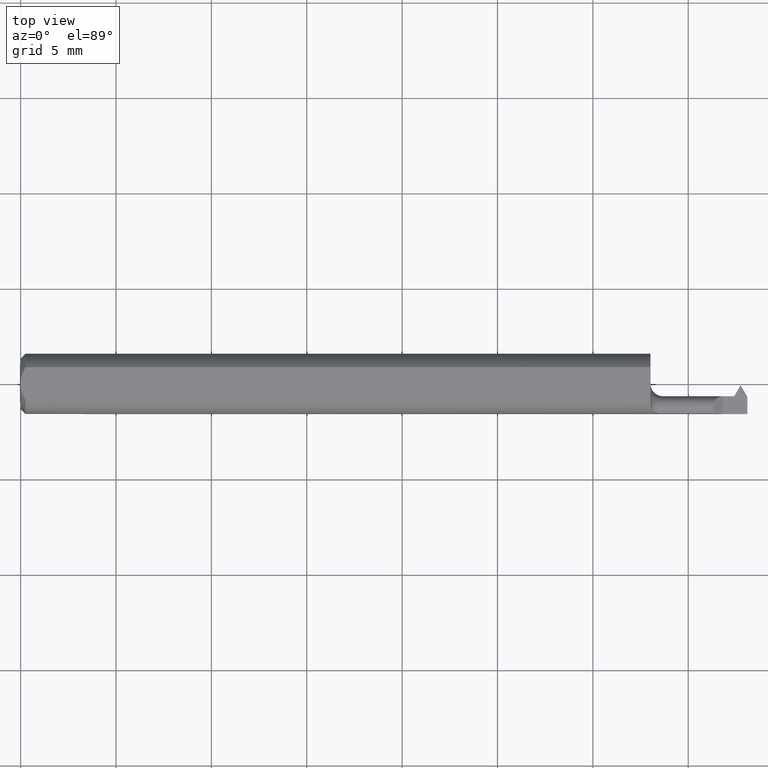
[diagram: clean part render]
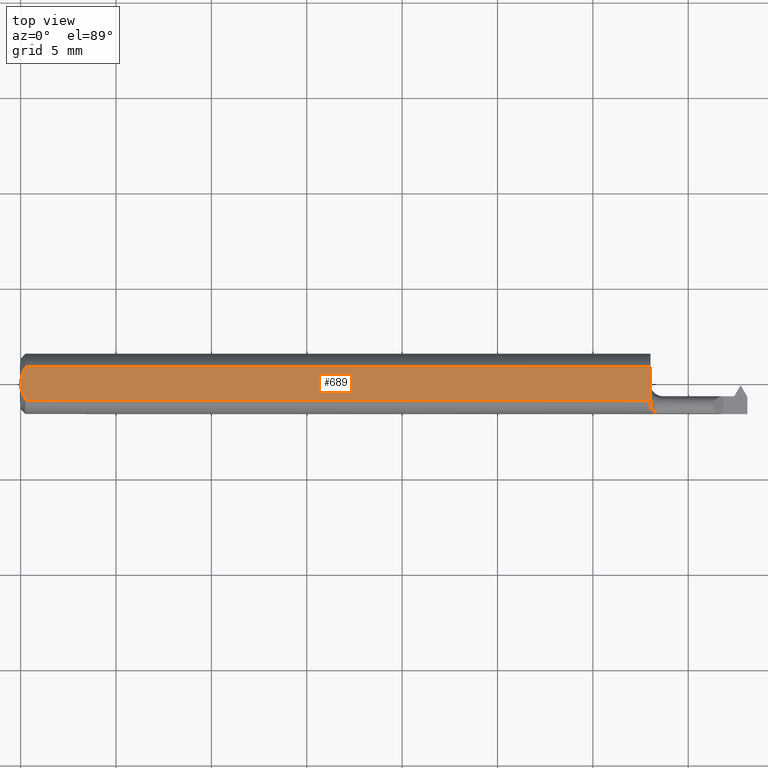
[diagram: same view with one face highlighted and labeled with its STEP entity id]
A machine part, top view. The second image highlights one B-rep face of the part: STEP entity #689.
In plain terms, the highlighted planar face has unit normal (0, 0, 1).
Its self-contained STEP definition (entity closure, byte-faithful):
#4 = CARTESIAN_POINT ( 'NONE',  ( -8.573957617566337510E-16, 0.005954997531773999035, 0.05234999999999997294 ) ) ;
#9 = LINE ( 'NONE', #332, #424 ) ;
#17 = VECTOR ( 'NONE', #316, 39.37007874015748143 ) ;
#42 = DIRECTION ( 'NONE',  ( -1.000000000000000000, -0.000000000000000000, -0.000000000000000000 ) ) ;
#43 = EDGE_CURVE ( 'NONE', #362, #551, #375, .T. ) ;
#47 = CARTESIAN_POINT ( 'NONE',  ( 0.000000000000000000, 0.000000000000000000, 0.05234999999999997294 ) ) ;
#82 = EDGE_CURVE ( 'NONE', #266, #306, #95, .T. ) ;
#95 = LINE ( 'NONE', #594, #542 ) ;
#106 = DIRECTION ( 'NONE',  ( -9.929577671863619690E-17, 1.000000000000000000, 0.000000000000000000 ) ) ;
#129 = ORIENTED_EDGE ( 'NONE', *, *, #442, .F. ) ;
#139 = CARTESIAN_POINT ( 'NONE',  ( 1.300000000000000044, -0.03386738844375225543, 0.05234999999999997294 ) ) ;
#170 = CARTESIAN_POINT ( 'NONE',  ( 0.001063697276021587047, 0.01189177144351697378, 0.05234999999999997988 ) ) ;
#190 = CARTESIAN_POINT ( 'NONE',  ( 0.007163450771350545095, -0.02864528976618618133, 0.05234999999999997294 ) ) ;
#197 = B_SPLINE_CURVE_WITH_KNOTS ( 'NONE', 3,
 ( #47, #4, #170, #394, #223, #501 ),
 .UNSPECIFIED., .F., .F.,
 ( 4, 2, 4 ),
 ( 0.003093386807937201135, 0.003544501666246021275, 0.003995616524554840981 ),
 .UNSPECIFIED. ) ;
#207 = B_SPLINE_CURVE_WITH_KNOTS ( 'NONE', 3,
 ( #688, #190, #360, #588, #476, #693 ),
 .UNSPECIFIED., .F., .F.,
 ( 4, 2, 4 ),
 ( 0.002189598257423869179, 0.002641492532680535157, 0.003093386807937201135 ),
 .UNSPECIFIED. ) ;
#211 = CARTESIAN_POINT ( 'NONE',  ( 0.000000000000000000, -0.03386738844375224849, 0.05234999999999997294 ) ) ;
#212 = ORIENTED_EDGE ( 'NONE', *, *, #597, .F. ) ;
#223 = CARTESIAN_POINT ( 'NONE',  ( 0.007185421074056362600, 0.02868573718286564905, 0.05234999999999997294 ) ) ;
#266 = VERTEX_POINT ( 'NONE', #398 ) ;
#278 = CARTESIAN_POINT ( 'NONE',  ( 0.01000000000000001582, -0.03386738844375224849, 0.05234999999999997294 ) ) ;
#286 = DIRECTION ( 'NONE',  ( 0.000000000000000000, 0.000000000000000000, 1.000000000000000000 ) ) ;
#287 = CARTESIAN_POINT ( 'NONE',  ( 0.01000000000000001582, 0.03386738844375224849, 0.05234999999999997294 ) ) ;
#303 = ORIENTED_EDGE ( 'NONE', *, *, #43, .T. ) ;
#306 = VERTEX_POINT ( 'NONE', #287 ) ;
#316 = DIRECTION ( 'NONE',  ( 1.000000000000000000, 0.000000000000000000, 0.000000000000000000 ) ) ;
#330 = AXIS2_PLACEMENT_3D ( 'NONE', #720, #286, #447 ) ;
#331 = FACE_OUTER_BOUND ( 'NONE', #577, .T. ) ;
#332 = CARTESIAN_POINT ( 'NONE',  ( 1.300000000000000044, 0.06234999999999996795, 0.05234999999999997294 ) ) ;
#334 = EDGE_CURVE ( 'NONE', #551, #266, #9, .T. ) ;
#337 = ORIENTED_EDGE ( 'NONE', *, *, #334, .T. ) ;
#360 = CARTESIAN_POINT ( 'NONE',  ( 0.004679365186781183836, -0.02325953974079657954, 0.05234999999999997988 ) ) ;
#362 = VERTEX_POINT ( 'NONE', #278 ) ;
#375 = LINE ( 'NONE', #211, #17 ) ;
#394 = CARTESIAN_POINT ( 'NONE',  ( 0.004671770759546950945, 0.02323517832780109052, 0.05234999999999998682 ) ) ;
#398 = CARTESIAN_POINT ( 'NONE',  ( 1.300000000000000044, 0.03386738844375224849, 0.05234999999999997294 ) ) ;
#424 = VECTOR ( 'NONE', #106, 39.37007874015748143 ) ;
#442 = EDGE_CURVE ( 'NONE', #362, #684, #207, .T. ) ;
#447 = DIRECTION ( 'NONE',  ( 1.000000000000000000, 0.000000000000000000, -0.000000000000000000 ) ) ;
#452 = CARTESIAN_POINT ( 'NONE',  ( 0.000000000000000000, 0.000000000000000000, 0.05234999999999997294 ) ) ;
#476 = CARTESIAN_POINT ( 'NONE',  ( -8.345942350761171353E-16, -0.005965286321680268559, 0.05234999999999997294 ) ) ;
#501 = CARTESIAN_POINT ( 'NONE',  ( 0.01000000000000001582, 0.03386738844375224849, 0.05234999999999997294 ) ) ;
#505 = PLANE ( 'NONE',  #330 ) ;
#542 = VECTOR ( 'NONE', #42, 39.37007874015748143 ) ;
#551 = VERTEX_POINT ( 'NONE', #139 ) ;
#577 = EDGE_LOOP ( 'NONE', ( #303, #337, #690, #212, #129 ) ) ;
#588 = CARTESIAN_POINT ( 'NONE',  ( 0.001055043921633170472, -0.01186408073210962373, 0.05234999999999998682 ) ) ;
#594 = CARTESIAN_POINT ( 'NONE',  ( 0.000000000000000000, 0.03386738844375224849, 0.05234999999999997294 ) ) ;
#597 = EDGE_CURVE ( 'NONE', #684, #306, #197, .T. ) ;
#684 = VERTEX_POINT ( 'NONE', #452 ) ;
#688 = CARTESIAN_POINT ( 'NONE',  ( 0.01000000000000001582, -0.03386738844375224849, 0.05234999999999997294 ) ) ;
#689 = ADVANCED_FACE ( 'NONE', ( #331 ), #505, .T. ) ;
#690 = ORIENTED_EDGE ( 'NONE', *, *, #82, .T. ) ;
#693 = CARTESIAN_POINT ( 'NONE',  ( 0.000000000000000000, 0.000000000000000000, 0.05234999999999997294 ) ) ;
#720 = CARTESIAN_POINT ( 'NONE',  ( 1.630958352158234037, 0.06235000000000000264, 0.05234999999999997294 ) ) ;